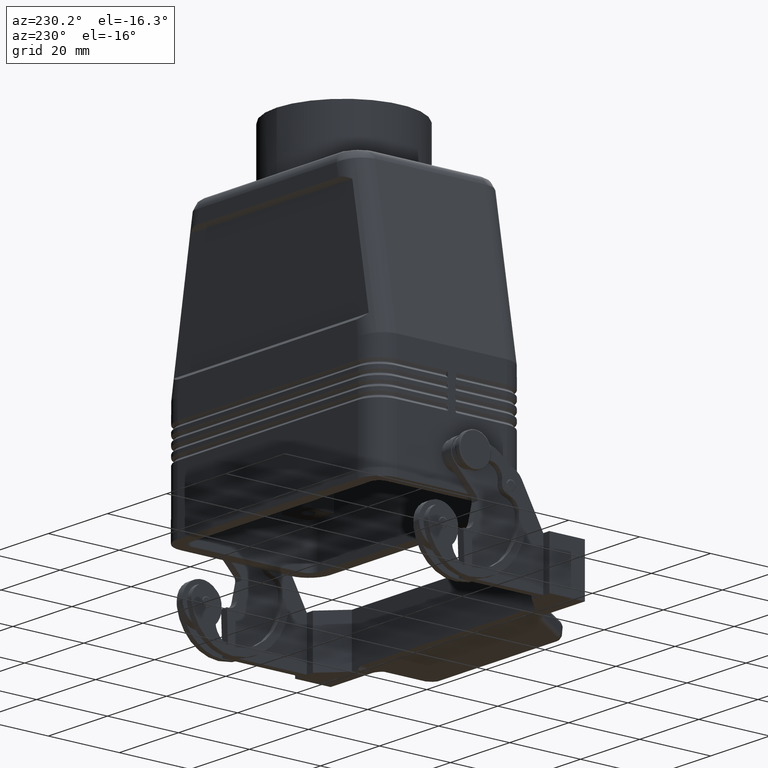
[diagram: clean part render]
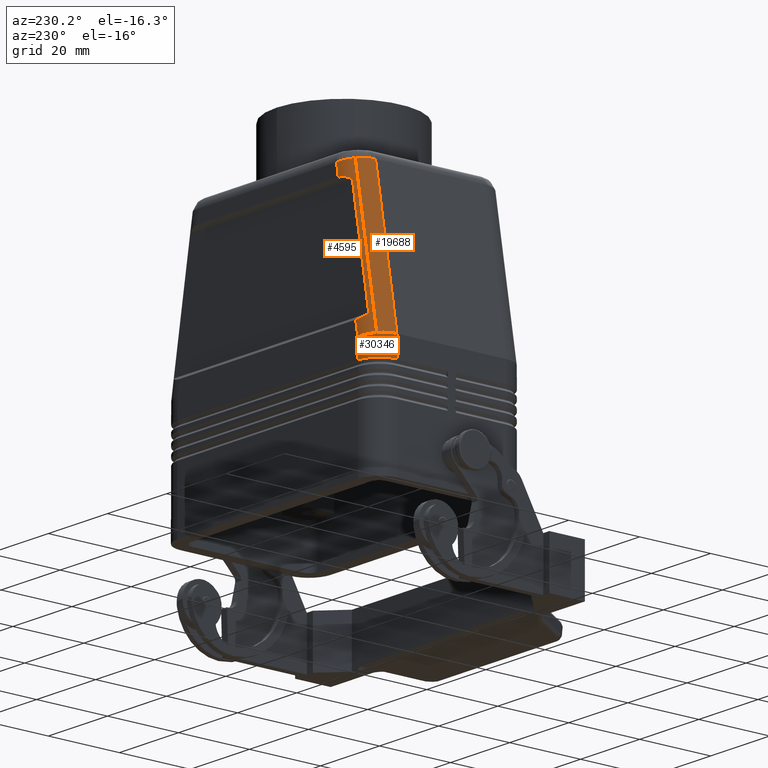
[diagram: same view with one multi-face feature highlighted, each face labeled with its STEP entity id]
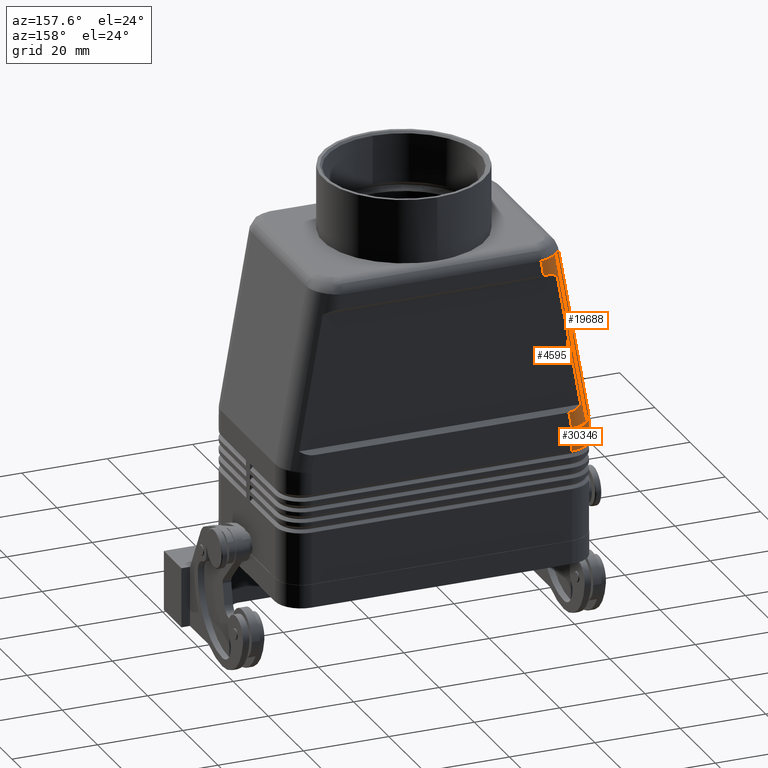
[diagram: same view with one multi-face feature highlighted, each face labeled with its STEP entity id]
A machine part, auxiliary view. The highlighted faces form ONE feature: a constant-radius fillet chain: 3 tangent blend faces with common blend radius 6 mm. The faces share edges in the B-rep.
A second angle (auxiliary view) of the same feature is appended — it is thin or edge-on in the first view.
Their STEP definitions:
[1] entity #30346 (Cylinder):
#4529=CARTESIAN_POINT('',(-34.742640687119298,19.742640687119280,32.346250982381143));
#4530=VERTEX_POINT('',#4529);
#4578=CARTESIAN_POINT('',(-30.500000000000004,21.500000000000000,31.975068018844397));
#4579=VERTEX_POINT('',#4578);
#4586=CARTESIAN_POINT('',(-30.500000000000007,15.499999999999998,31.975068018844368));
#4587=DIRECTION('',(0.087155742747658,9.860761E-032,0.996194698091745));
#4588=DIRECTION('',(-0.996194698091745,-6.082991E-015,0.087155742747658));
#4589=AXIS2_PLACEMENT_3D('',#4586,#4587,#4588);
#4590=ELLIPSE('',#4589,6.022919025260085,6.000000000000001);
#4591=EDGE_CURVE('',#4579,#4530,#4590,.T.);
#19631=CARTESIAN_POINT('',(-36.500000000000000,15.500000000000000,32.500000000000000));
#19632=VERTEX_POINT('',#19631);
#19662=CARTESIAN_POINT('',(-30.500000000000007,15.499999999999998,31.975068018844368));
#19663=DIRECTION('',(0.087155742747658,9.860761E-032,0.996194698091745));
#19664=DIRECTION('',(-0.996194698091745,-6.082991E-015,0.087155742747658));
#19665=AXIS2_PLACEMENT_3D('',#19662,#19663,#19664);
#19666=ELLIPSE('',#19665,6.022919025260085,6.000000000000001);
#19667=EDGE_CURVE('',#4530,#19632,#19666,.T.);
#22665=CARTESIAN_POINT('',(-36.500000000000014,15.499999999999998,26.750000000000004));
#22666=VERTEX_POINT('',#22665);
#22667=CARTESIAN_POINT('',(-36.500000000000014,15.499999999999998,26.750000000000004));
#22668=DIRECTION('',(0.0,0.0,1.0));
#22669=VECTOR('',#22668,5.749999999999996);
#22670=LINE('',#22667,#22669);
#22671=EDGE_CURVE('',#22666,#19632,#22670,.T.);
#29086=CARTESIAN_POINT('',(-30.500000000000007,21.500000000000007,26.750000000000004));
#29087=VERTEX_POINT('',#29086);
#29088=CARTESIAN_POINT('',(-30.500000000000004,15.500000000000000,26.750000000000000));
#29089=DIRECTION('',(0.0,0.0,1.0));
#29090=DIRECTION('',(0.0,1.0,0.0));
#29091=AXIS2_PLACEMENT_3D('',#29088,#29089,#29090);
#29092=CIRCLE('',#29091,6.000000000000005);
#29093=EDGE_CURVE('',#29087,#22666,#29092,.T.);
#30224=CARTESIAN_POINT('',(-30.500000000000007,21.500000000000007,26.750000000000004));
#30225=DIRECTION('',(0.0,0.0,1.0));
#30226=VECTOR('',#30225,5.225068018844393);
#30227=LINE('',#30224,#30226);
#30228=EDGE_CURVE('',#29087,#4579,#30227,.T.);
#30334=CARTESIAN_POINT('',(-30.500000000000004,15.500000000000000,5.500000000000000));
#30335=DIRECTION('',(0.0,0.0,1.0));
#30336=DIRECTION('',(0.0,1.0,0.0));
#30337=AXIS2_PLACEMENT_3D('',#30334,#30335,#30336);
#30338=CYLINDRICAL_SURFACE('',#30337,6.000000000000005);
#30339=ORIENTED_EDGE('',*,*,#29093,.T.);
#30340=ORIENTED_EDGE('',*,*,#22671,.T.);
#30341=ORIENTED_EDGE('',*,*,#19667,.F.);
#30342=ORIENTED_EDGE('',*,*,#4591,.F.);
#30343=ORIENTED_EDGE('',*,*,#30228,.F.);
#30344=EDGE_LOOP('',(#30339,#30340,#30341,#30342,#30343));
#30345=FACE_OUTER_BOUND('',#30344,.T.);
#30346=ADVANCED_FACE('',(#30345),#30338,.T.);
[2] entity #4595 (Cylinder):
#1414=CARTESIAN_POINT('',(-23.266197609992695,21.500000000000000,73.000000000000028));
#1415=VERTEX_POINT('',#1414);
#4522=CARTESIAN_POINT('',(-28.974216550144757,15.499999999999998,40.628215958682048));
#4523=DIRECTION('',(-0.173648177666930,0.0,-0.984807753012208));
#4524=DIRECTION('',(-0.696364240320019,0.707106781186547,0.122787803968974));
#4525=AXIS2_PLACEMENT_3D('',#4522,#4523,#4524);
#4526=CYLINDRICAL_SURFACE('',#4525,6.000000000000001);
#4527=CARTESIAN_POINT('',(-27.509335460137827,19.742640687119277,73.368363411906955));
#4528=VERTEX_POINT('',#4527);
#4529=CARTESIAN_POINT('',(-34.742640687119298,19.742640687119280,32.346250982381143));
#4530=VERTEX_POINT('',#4529);
#4531=CARTESIAN_POINT('',(-27.509335460137827,19.742640687119277,73.368363411906955));
#4532=DIRECTION('',(-0.173648177666930,8.528912E-017,-0.984807753012208));
#4533=VECTOR('',#4532,41.654944636709502);
#4534=LINE('',#4531,#4533);
#4535=EDGE_CURVE('',#4528,#4530,#4534,.T.);
#4536=ORIENTED_EDGE('',*,*,#4535,.F.);
#4537=CARTESIAN_POINT('',(-23.266197609992687,15.499999999999998,73.000000000000028));
#4538=DIRECTION('',(0.086488610095082,6.401443E-017,0.996252839556214));
#4539=DIRECTION('',(-0.996252839556215,0.0,0.086488610095082));
#4540=AXIS2_PLACEMENT_3D('',#4537,#4538,#4539);
#4541=ELLIPSE('',#4540,6.023273266018395,6.000000000000001);
#4542=EDGE_CURVE('',#1415,#4528,#4541,.T.);
#4543=ORIENTED_EDGE('',*,*,#4542,.F.);
#4544=CARTESIAN_POINT('',(-23.883342042472329,21.500000000000000,69.500000000000000));
#4545=VERTEX_POINT('',#4544);
#4546=CARTESIAN_POINT('',(-23.266197609992695,21.500000000000000,73.000000000000028));
#4547=DIRECTION('',(-0.173648177666931,0.0,-0.984807753012208));
#4548=VECTOR('',#4547,3.553993141600137);
#4549=LINE('',#4546,#4548);
#4550=EDGE_CURVE('',#1415,#4545,#4549,.T.);
#4551=ORIENTED_EDGE('',*,*,#4550,.T.);
#4552=CARTESIAN_POINT('',(-27.427458096947639,20.500000000000000,68.499999999999986));
#4553=VERTEX_POINT('',#4552);
#4554=CARTESIAN_POINT('',(-24.941303926723126,15.499999999999998,63.499999999999929));
#4555=DIRECTION('',(-1.387779E-017,-0.707106781186552,0.707106781186543));
#4556=DIRECTION('',(0.241954785752363,0.686096888803438,0.686096888803448));
#4557=AXIS2_PLACEMENT_3D('',#4554,#4555,#4556);
#4558=ELLIPSE('',#4557,8.616180516740348,6.0);
#4559=EDGE_CURVE('',#4545,#4553,#4558,.T.);
#4560=ORIENTED_EDGE('',*,*,#4559,.T.);
#4561=CARTESIAN_POINT('',(-32.981757989264281,20.499999999999993,37.000000000000021));
#4562=VERTEX_POINT('',#4561);
#4563=CARTESIAN_POINT('',(-27.427458096947639,20.500000000000000,68.499999999999986));
#4564=DIRECTION('',(-0.173648177666930,-2.221422E-016,-0.984807753012208));
#4565=VECTOR('',#4564,31.985938274400930);
#4566=LINE('',#4563,#4565);
#4567=EDGE_CURVE('',#4553,#4562,#4566,.T.);
#4568=ORIENTED_EDGE('',*,*,#4567,.T.);
#4569=CARTESIAN_POINT('',(-29.790295896205897,21.499999999999989,36.000000000000007));
#4570=VERTEX_POINT('',#4569);
#4571=CARTESIAN_POINT('',(-28.732334011955093,15.499999999999998,42.000000000000085));
#4572=DIRECTION('',(-1.387779E-017,-0.707106781186552,-0.707106781186543));
#4573=DIRECTION('',(-0.241954785752363,0.686096888803438,-0.686096888803448));
#4574=AXIS2_PLACEMENT_3D('',#4571,#4572,#4573);
#4575=ELLIPSE('',#4574,8.616180516740348,6.000000000000001);
#4576=EDGE_CURVE('',#4562,#4570,#4575,.T.);
#4577=ORIENTED_EDGE('',*,*,#4576,.T.);
#4578=CARTESIAN_POINT('',(-30.500000000000004,21.500000000000000,31.975068018844397));
#4579=VERTEX_POINT('',#4578);
#4580=CARTESIAN_POINT('',(-29.790295896205897,21.499999999999989,36.000000000000007));
#4581=DIRECTION('',(-0.173648177666930,2.607801E-015,-0.984807753012208));
#4582=VECTOR('',#4581,4.087023044695420);
#4583=LINE('',#4580,#4582);
#4584=EDGE_CURVE('',#4570,#4579,#4583,.T.);
#4585=ORIENTED_EDGE('',*,*,#4584,.T.);
#4586=CARTESIAN_POINT('',(-30.500000000000007,15.499999999999998,31.975068018844368));
#4587=DIRECTION('',(0.087155742747658,9.860761E-032,0.996194698091745));
#4588=DIRECTION('',(-0.996194698091745,-6.082991E-015,0.087155742747658));
#4589=AXIS2_PLACEMENT_3D('',#4586,#4587,#4588);
#4590=ELLIPSE('',#4589,6.022919025260085,6.000000000000001);
#4591=EDGE_CURVE('',#4579,#4530,#4590,.T.);
#4592=ORIENTED_EDGE('',*,*,#4591,.T.);
#4593=EDGE_LOOP('',(#4536,#4543,#4551,#4560,#4568,#4577,#4585,#4592));
#4594=FACE_OUTER_BOUND('',#4593,.T.);
#4595=ADVANCED_FACE('',(#4594),#4526,.T.);
[3] entity #19688 (Cylinder):
#4527=CARTESIAN_POINT('',(-27.509335460137827,19.742640687119277,73.368363411906955));
#4528=VERTEX_POINT('',#4527);
#4529=CARTESIAN_POINT('',(-34.742640687119298,19.742640687119280,32.346250982381143));
#4530=VERTEX_POINT('',#4529);
#4531=CARTESIAN_POINT('',(-27.509335460137827,19.742640687119277,73.368363411906955));
#4532=DIRECTION('',(-0.173648177666930,8.528912E-017,-0.984807753012208));
#4533=VECTOR('',#4532,41.654944636709502);
#4534=LINE('',#4531,#4533);
#4535=EDGE_CURVE('',#4528,#4530,#4534,.T.);
#4727=CARTESIAN_POINT('',(-29.266900704686559,15.499999999999998,73.520944533000801));
#4728=VERTEX_POINT('',#4727);
#19631=CARTESIAN_POINT('',(-36.500000000000000,15.500000000000000,32.500000000000000));
#19632=VERTEX_POINT('',#19631);
#19633=CARTESIAN_POINT('',(-36.500000000000000,15.500000000000000,32.500000000000000));
#19634=DIRECTION('',(0.173648177666930,-4.264578E-017,0.984807753012208));
#19635=VECTOR('',#19634,41.653758723498079);
#19636=LINE('',#19633,#19635);
#19637=EDGE_CURVE('',#19632,#4728,#19636,.T.);
#19656=CARTESIAN_POINT('',(-28.974216550144757,15.499999999999998,40.628215958682048));
#19657=DIRECTION('',(-0.173648177666930,0.0,-0.984807753012208));
#19658=DIRECTION('',(-0.696364240320019,0.707106781186547,0.122787803968974));
#19659=AXIS2_PLACEMENT_3D('',#19656,#19657,#19658);
#19660=CYLINDRICAL_SURFACE('',#19659,6.000000000000001);
#19661=ORIENTED_EDGE('',*,*,#4535,.T.);
#19662=CARTESIAN_POINT('',(-30.500000000000007,15.499999999999998,31.975068018844368));
#19663=DIRECTION('',(0.087155742747658,9.860761E-032,0.996194698091745));
#19664=DIRECTION('',(-0.996194698091745,-6.082991E-015,0.087155742747658));
#19665=AXIS2_PLACEMENT_3D('',#19662,#19663,#19664);
#19666=ELLIPSE('',#19665,6.022919025260085,6.000000000000001);
#19667=EDGE_CURVE('',#4530,#19632,#19666,.T.);
#19668=ORIENTED_EDGE('',*,*,#19667,.T.);
#19669=ORIENTED_EDGE('',*,*,#19637,.T.);
#19670=CARTESIAN_POINT('',(-28.599504758684006,18.250000000000000,73.463005277561834));
#19671=VERTEX_POINT('',#19670);
#19672=CARTESIAN_POINT('',(-23.266197609992687,15.499999999999998,73.000000000000028));
#19673=DIRECTION('',(0.086488610095082,6.401443E-017,0.996252839556214));
#19674=DIRECTION('',(-0.996252839556215,0.0,0.086488610095082));
#19675=AXIS2_PLACEMENT_3D('',#19672,#19673,#19674);
#19676=ELLIPSE('',#19675,6.023273266018395,6.000000000000001);
#19677=EDGE_CURVE('',#19671,#4728,#19676,.T.);
#19678=ORIENTED_EDGE('',*,*,#19677,.F.);
#19679=CARTESIAN_POINT('',(-23.266197609992687,15.499999999999998,73.000000000000028));
#19680=DIRECTION('',(0.086488610095082,6.401443E-017,0.996252839556214));
#19681=DIRECTION('',(-0.996252839556215,0.0,0.086488610095082));
#19682=AXIS2_PLACEMENT_3D('',#19679,#19680,#19681);
#19683=ELLIPSE('',#19682,6.023273266018395,6.000000000000001);
#19684=EDGE_CURVE('',#4528,#19671,#19683,.T.);
#19685=ORIENTED_EDGE('',*,*,#19684,.F.);
#19686=EDGE_LOOP('',(#19661,#19668,#19669,#19678,#19685));
#19687=FACE_OUTER_BOUND('',#19686,.T.);
#19688=ADVANCED_FACE('',(#19687),#19660,.T.);